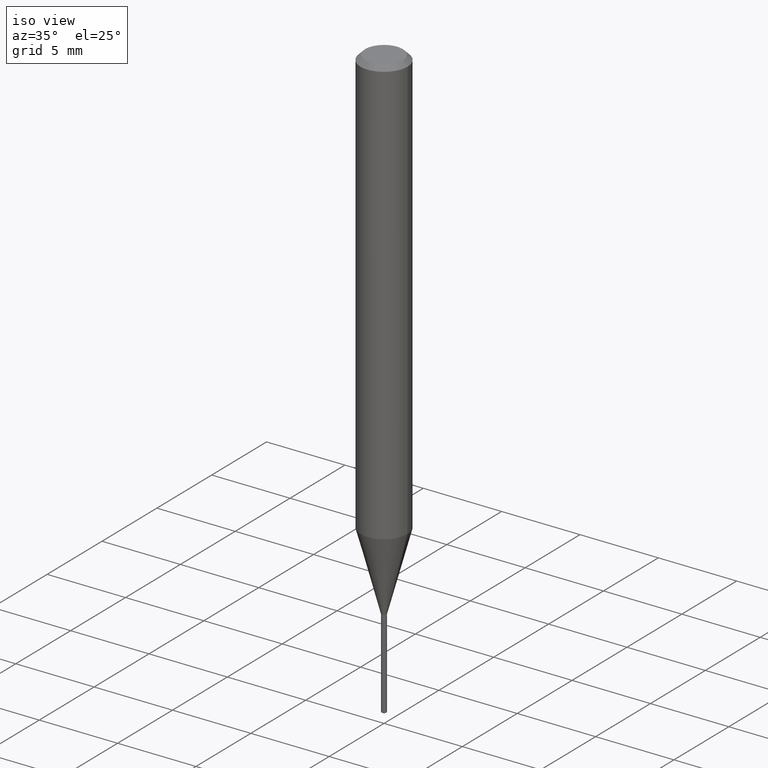
[diagram: clean part render]
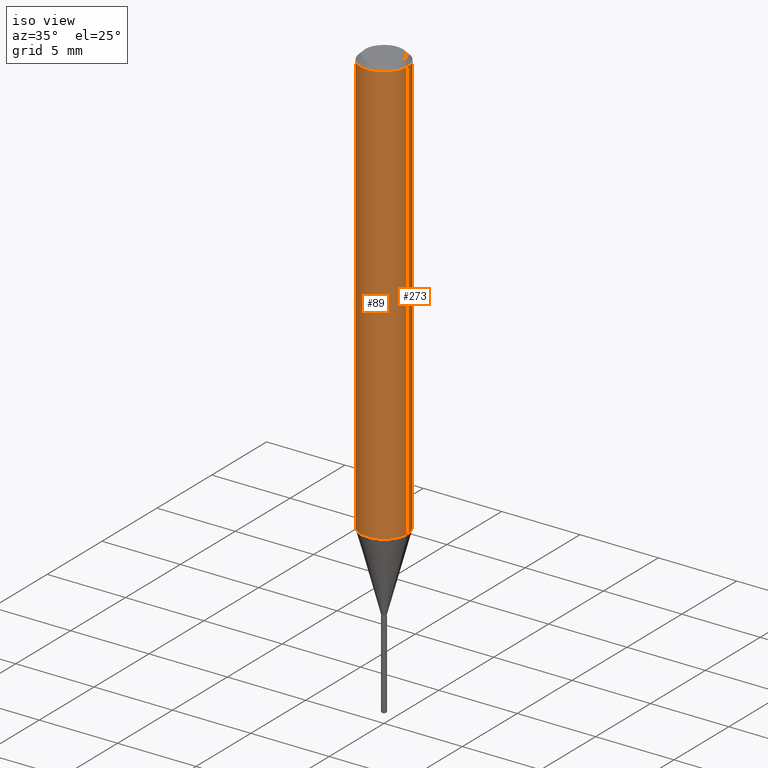
[diagram: same view with one multi-face feature highlighted, each face labeled with its STEP entity id]
A machine part, iso view. The highlighted faces form ONE feature: a constant-radius fillet chain: 2 tangent blend faces with common blend radius 1.4999 mm. The faces share edges in the B-rep.
Their STEP definitions:
[1] entity #273 (Cylinder):
#16 = CIRCLE ( 'NONE', #106, 0.05905000000000013710 ) ;
#44 = DIRECTION ( 'NONE',  ( -2.445468806185136877E-29, 3.491481338843145188E-15, 1.000000000000000000 ) ) ;
#55 = VERTEX_POINT ( 'NONE', #208 ) ;
#73 = DIRECTION ( 'NONE',  ( -2.445468806185136597E-29, 3.491481338843145583E-15, 1.000000000000000000 ) ) ;
#82 = DIRECTION ( 'NONE',  ( 1.000000000000000000, -6.982962677686266711E-15, 0.000000000000000000 ) ) ;
#95 = ORIENTED_EDGE ( 'NONE', *, *, #387, .T. ) ;
#106 = AXIS2_PLACEMENT_3D ( 'NONE', #489, #449, #146 ) ;
#111 = LINE ( 'NONE', #297, #129 ) ;
#115 = EDGE_CURVE ( 'NONE', #289, #440, #16, .T. ) ;
#129 = VECTOR ( 'NONE', #187, 39.37007874015748143 ) ;
#138 = EDGE_CURVE ( 'NONE', #55, #308, #351, .T. ) ;
#145 = DIRECTION ( 'NONE',  ( 1.000000000000000000, -6.982962677686266711E-15, 4.876176775795936353E-29 ) ) ;
#146 = DIRECTION ( 'NONE',  ( 1.000000000000000000, -6.982962677686264344E-15, 0.000000000000000000 ) ) ;
#155 = CYLINDRICAL_SURFACE ( 'NONE', #298, 0.05905000000000006771 ) ;
#181 = FACE_OUTER_BOUND ( 'NONE', #203, .T. ) ;
#187 = DIRECTION ( 'NONE',  ( -2.445468806185136877E-29, 3.491481338843145188E-15, 1.000000000000000000 ) ) ;
#194 = ORIENTED_EDGE ( 'NONE', *, *, #293, .F. ) ;
#203 = EDGE_LOOP ( 'NONE', ( #429, #95, #340, #194 ) ) ;
#208 = CARTESIAN_POINT ( 'NONE',  ( 0.05904999999999999832, -4.535783407291118600E-16, -0.01181000000000007044 ) ) ;
#242 = VECTOR ( 'NONE', #44, 39.37007874015748143 ) ;
#273 = ADVANCED_FACE ( 'NONE', ( #181 ), #155, .T. ) ;
#289 = VERTEX_POINT ( 'NONE', #446 ) ;
#293 = EDGE_CURVE ( 'NONE', #289, #55, #111, .T. ) ;
#297 = CARTESIAN_POINT ( 'NONE',  ( 0.05905000000000006771, -4.123439461173745257E-16, 2.879382386107503723E-30 ) ) ;
#298 = AXIS2_PLACEMENT_3D ( 'NONE', #483, #73, #145 ) ;
#300 = CARTESIAN_POINT ( 'NONE',  ( -0.05905000000000014404, -3.326554670271460778E-15, -1.072934319900741729 ) ) ;
#307 = LINE ( 'NONE', #309, #242 ) ;
#308 = VERTEX_POINT ( 'NONE', #459 ) ;
#309 = CARTESIAN_POINT ( 'NONE',  ( -0.05905000000000006771, 4.195754854663396409E-16, -2.904631170795525045E-30 ) ) ;
#340 = ORIENTED_EDGE ( 'NONE', *, *, #138, .F. ) ;
#351 = CIRCLE ( 'NONE', #450, 0.05904999999999999832 ) ;
#368 = CARTESIAN_POINT ( 'NONE',  ( 2.888098660104663766E-31, -4.123439461173779647E-17, -0.01181000000000007044 ) ) ;
#372 = DIRECTION ( 'NONE',  ( -2.445468806185136597E-29, 3.491481338843145583E-15, 1.000000000000000000 ) ) ;
#387 = EDGE_CURVE ( 'NONE', #440, #308, #307, .T. ) ;
#429 = ORIENTED_EDGE ( 'NONE', *, *, #115, .T. ) ;
#440 = VERTEX_POINT ( 'NONE', #300 ) ;
#446 = CARTESIAN_POINT ( 'NONE',  ( 0.05905000000000014404, -4.158474101855175191E-15, -1.072934319900741729 ) ) ;
#449 = DIRECTION ( 'NONE',  ( -2.445468806185136597E-29, 3.491481338843145583E-15, 1.000000000000000000 ) ) ;
#450 = AXIS2_PLACEMENT_3D ( 'NONE', #368, #372, #82 ) ;
#459 = CARTESIAN_POINT ( 'NONE',  ( -0.05904999999999999832, -1.474106789708429113E-15, -0.01181000000000007044 ) ) ;
#483 = CARTESIAN_POINT ( 'NONE',  ( 0.000000000000000000, 0.000000000000000000, 0.000000000000000000 ) ) ;
#489 = CARTESIAN_POINT ( 'NONE',  ( 2.623827410402727989E-29, -3.746130155737801060E-15, -1.072934319900741729 ) ) ;
[2] entity #89 (Cylinder):
#24 = ORIENTED_EDGE ( 'NONE', *, *, #133, .T. ) ;
#28 = DIRECTION ( 'NONE',  ( 1.000000000000000000, -6.982962677686266711E-15, 4.876176775795936353E-29 ) ) ;
#44 = DIRECTION ( 'NONE',  ( -2.445468806185136877E-29, 3.491481338843145188E-15, 1.000000000000000000 ) ) ;
#55 = VERTEX_POINT ( 'NONE', #208 ) ;
#89 = ADVANCED_FACE ( 'NONE', ( #363 ), #327, .T. ) ;
#111 = LINE ( 'NONE', #297, #129 ) ;
#125 = ORIENTED_EDGE ( 'NONE', *, *, #293, .T. ) ;
#127 = EDGE_LOOP ( 'NONE', ( #379, #24, #125, #386 ) ) ;
#129 = VECTOR ( 'NONE', #187, 39.37007874015748143 ) ;
#133 = EDGE_CURVE ( 'NONE', #440, #289, #383, .T. ) ;
#186 = EDGE_CURVE ( 'NONE', #308, #55, #190, .T. ) ;
#187 = DIRECTION ( 'NONE',  ( -2.445468806185136877E-29, 3.491481338843145188E-15, 1.000000000000000000 ) ) ;
#190 = CIRCLE ( 'NONE', #444, 0.05904999999999999832 ) ;
#208 = CARTESIAN_POINT ( 'NONE',  ( 0.05904999999999999832, -4.535783407291118600E-16, -0.01181000000000007044 ) ) ;
#214 = CARTESIAN_POINT ( 'NONE',  ( 2.888098660104663766E-31, -4.123439461173779647E-17, -0.01181000000000007044 ) ) ;
#221 = DIRECTION ( 'NONE',  ( -2.445468806185136597E-29, 3.491481338843145583E-15, 1.000000000000000000 ) ) ;
#242 = VECTOR ( 'NONE', #44, 39.37007874015748143 ) ;
#259 = AXIS2_PLACEMENT_3D ( 'NONE', #475, #403, #28 ) ;
#264 = DIRECTION ( 'NONE',  ( 1.000000000000000000, -6.982962677686264344E-15, 0.000000000000000000 ) ) ;
#289 = VERTEX_POINT ( 'NONE', #446 ) ;
#293 = EDGE_CURVE ( 'NONE', #289, #55, #111, .T. ) ;
#295 = CARTESIAN_POINT ( 'NONE',  ( 2.623827410402727989E-29, -3.746130155737801060E-15, -1.072934319900741729 ) ) ;
#297 = CARTESIAN_POINT ( 'NONE',  ( 0.05905000000000006771, -4.123439461173745257E-16, 2.879382386107503723E-30 ) ) ;
#300 = CARTESIAN_POINT ( 'NONE',  ( -0.05905000000000014404, -3.326554670271460778E-15, -1.072934319900741729 ) ) ;
#307 = LINE ( 'NONE', #309, #242 ) ;
#308 = VERTEX_POINT ( 'NONE', #459 ) ;
#309 = CARTESIAN_POINT ( 'NONE',  ( -0.05905000000000006771, 4.195754854663396409E-16, -2.904631170795525045E-30 ) ) ;
#326 = DIRECTION ( 'NONE',  ( -2.445468806185136597E-29, 3.491481338843145583E-15, 1.000000000000000000 ) ) ;
#327 = CYLINDRICAL_SURFACE ( 'NONE', #259, 0.05905000000000006771 ) ;
#331 = AXIS2_PLACEMENT_3D ( 'NONE', #295, #221, #264 ) ;
#363 = FACE_OUTER_BOUND ( 'NONE', #127, .T. ) ;
#379 = ORIENTED_EDGE ( 'NONE', *, *, #387, .F. ) ;
#383 = CIRCLE ( 'NONE', #331, 0.05905000000000013710 ) ;
#386 = ORIENTED_EDGE ( 'NONE', *, *, #186, .F. ) ;
#387 = EDGE_CURVE ( 'NONE', #440, #308, #307, .T. ) ;
#403 = DIRECTION ( 'NONE',  ( -2.445468806185136597E-29, 3.491481338843145583E-15, 1.000000000000000000 ) ) ;
#440 = VERTEX_POINT ( 'NONE', #300 ) ;
#444 = AXIS2_PLACEMENT_3D ( 'NONE', #214, #326, #480 ) ;
#446 = CARTESIAN_POINT ( 'NONE',  ( 0.05905000000000014404, -4.158474101855175191E-15, -1.072934319900741729 ) ) ;
#459 = CARTESIAN_POINT ( 'NONE',  ( -0.05904999999999999832, -1.474106789708429113E-15, -0.01181000000000007044 ) ) ;
#475 = CARTESIAN_POINT ( 'NONE',  ( 0.000000000000000000, 0.000000000000000000, 0.000000000000000000 ) ) ;
#480 = DIRECTION ( 'NONE',  ( 1.000000000000000000, -6.982962677686266711E-15, 0.000000000000000000 ) ) ;